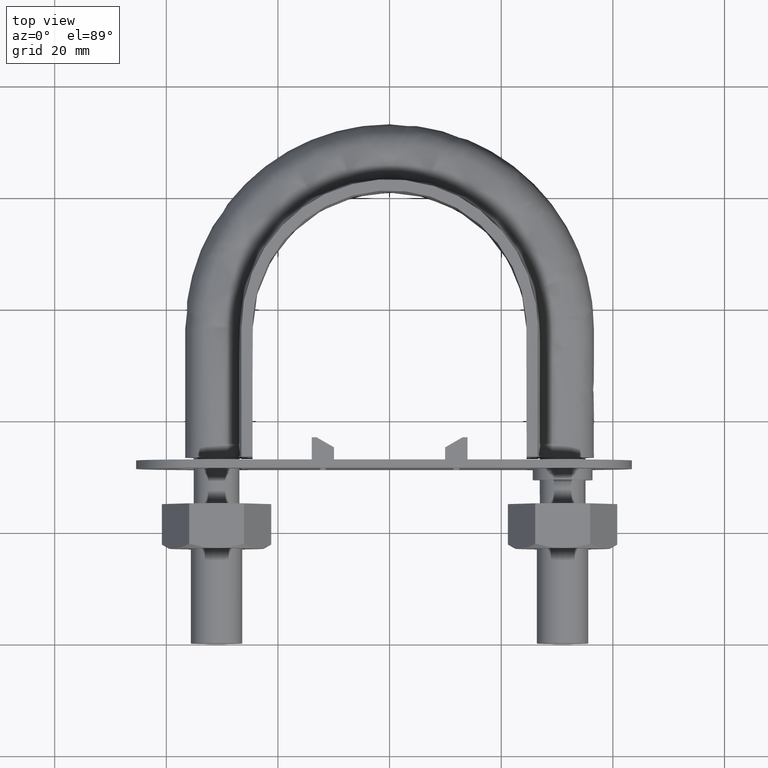
[diagram: clean part render]
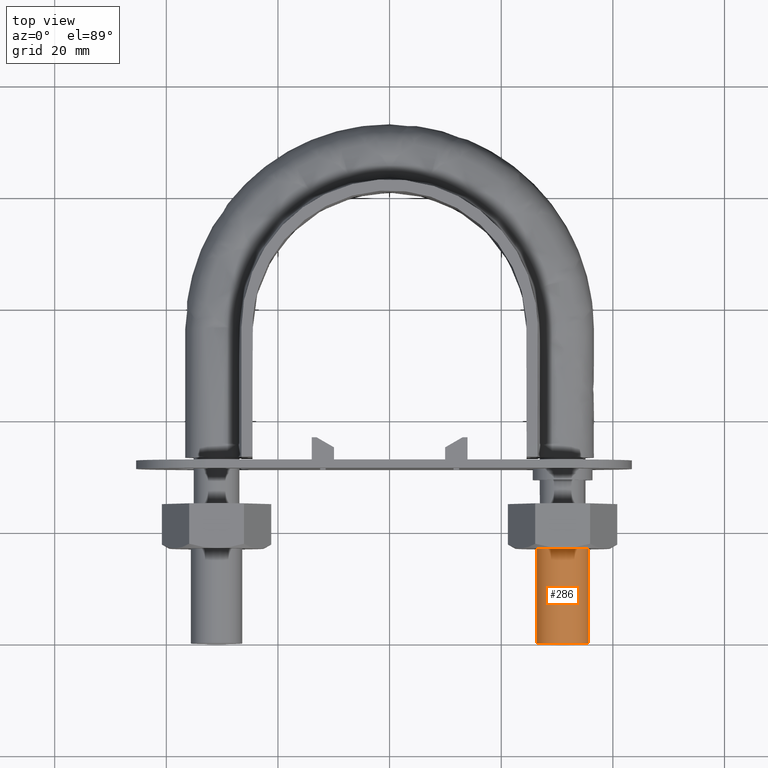
[diagram: same view with one face highlighted and labeled with its STEP entity id]
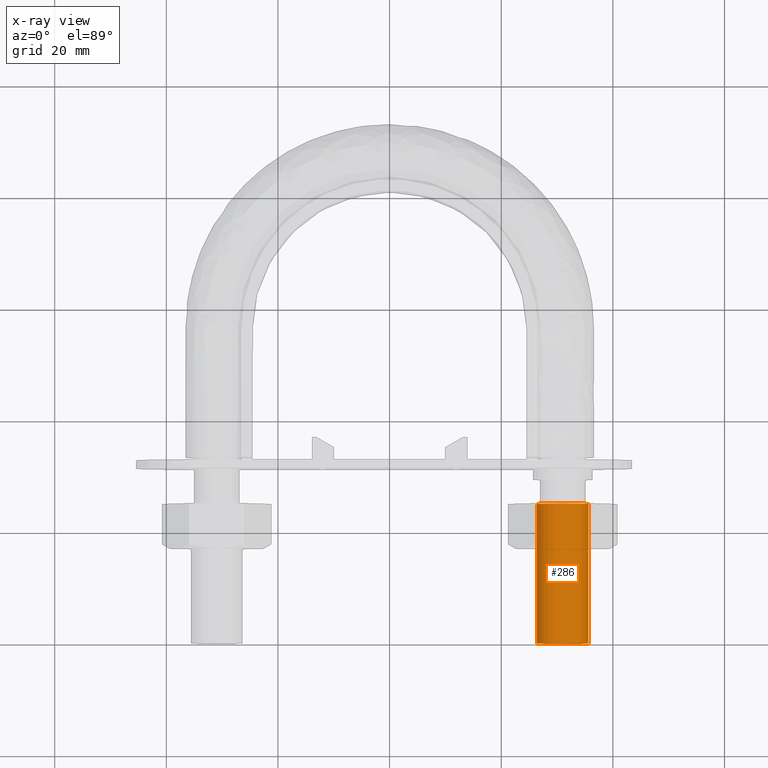
[diagram: x-ray of the same camera — body ghosted, the highlighted face saturated]
A machine part, top view. The second image highlights one B-rep face of the part: STEP entity #286.
The next image is the same camera in x-ray: the body ghosted, the highlighted face saturated — about 0% of this face is hidden behind the body in this view.
In plain terms, the highlighted cylindrical surface (bore or boss wall) has radius 4.6 mm, axis along (-0, -1, -0).
Its self-contained STEP definition (entity closure, byte-faithful):
#286 = ADVANCED_FACE( '', ( #423, #424 ), #425, .T. );
#423 = FACE_OUTER_BOUND( '', #1501, .T. );
#424 = FACE_OUTER_BOUND( '', #1502, .T. );
#425 = CYLINDRICAL_SURFACE( '', #1503, 4.60000000000000 );
#1501 = EDGE_LOOP( '', ( #1848 ) );
#1502 = EDGE_LOOP( '', ( #1849 ) );
#1503 = AXIS2_PLACEMENT_3D( '', #1850, #1851, #1852 );
#1848 = ORIENTED_EDGE( '', *, *, #2539, .F. );
#1849 = ORIENTED_EDGE( '', *, *, #2562, .T. );
#1850 = CARTESIAN_POINT( '', ( 31.0000000000000, 25.0000000000000, 7.85278824388599E-015 ) );
#1851 = DIRECTION( '', ( -2.44921270764475E-016, -1.00000000000000, -3.06151588455594E-016 ) );
#1852 = DIRECTION( '', ( 1.00000000000000, -2.44921270764475E-016, -3.74915180455534E-032 ) );
#2539 = EDGE_CURVE( '', #2791, #2791, #2792, .T. );
#2562 = EDGE_CURVE( '', #2823, #2823, #2824, .T. );
#2791 = VERTEX_POINT( '', #3377 );
#2792 = CIRCLE( '', #3378, 4.60000000000000 );
#2823 = VERTEX_POINT( '', #3451 );
#2824 = CIRCLE( '', #3452, 4.60000000000000 );
#3377 = CARTESIAN_POINT( '', ( 35.6000000000000, -8.71919723921533E-015, 1.98998532496135E-016 ) );
#3378 = AXIS2_PLACEMENT_3D( '', #4023, #4024, #4025 );
#3451 = CARTESIAN_POINT( '', ( 35.6000000000000, 25.0000000000000, 7.85278824388599E-015 ) );
#3452 = AXIS2_PLACEMENT_3D( '', #4050, #4051, #4052 );
#4023 = CARTESIAN_POINT( '', ( 31.0000000000000, -7.59255939369874E-015, 1.98998532496135E-016 ) );
#4024 = DIRECTION( '', ( -2.44921270764475E-016, -1.00000000000000, -3.06151588455594E-016 ) );
#4025 = DIRECTION( '', ( 1.00000000000000, -2.44921270764475E-016, -3.74915180455534E-032 ) );
#4050 = CARTESIAN_POINT( '', ( 31.0000000000000, 25.0000000000000, 7.85278824388599E-015 ) );
#4051 = DIRECTION( '', ( -2.44921270764475E-016, -1.00000000000000, -3.06151588455594E-016 ) );
#4052 = DIRECTION( '', ( 1.00000000000000, -2.44921270764475E-016, -3.74915180455534E-032 ) );